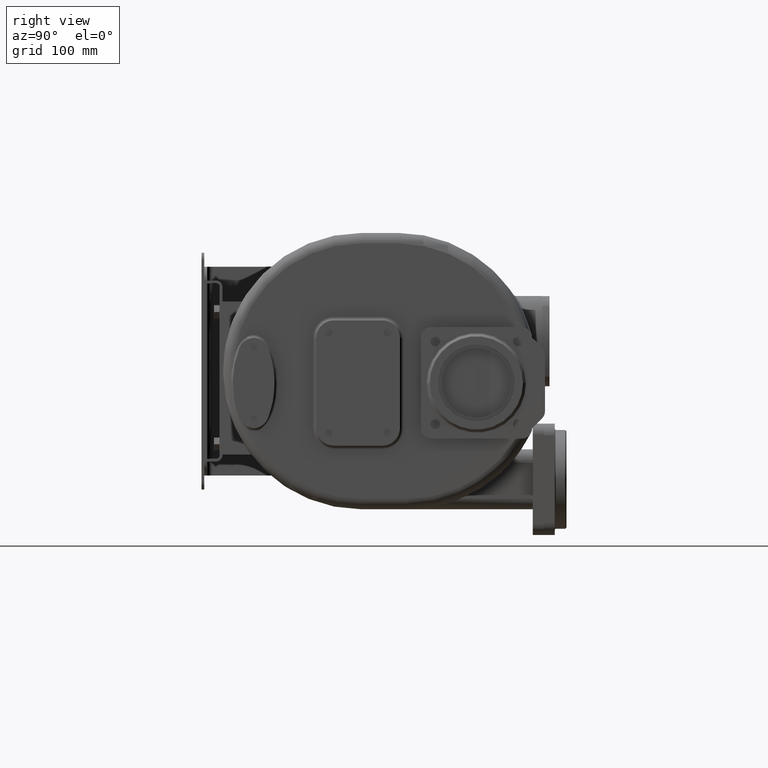
[diagram: clean part render]
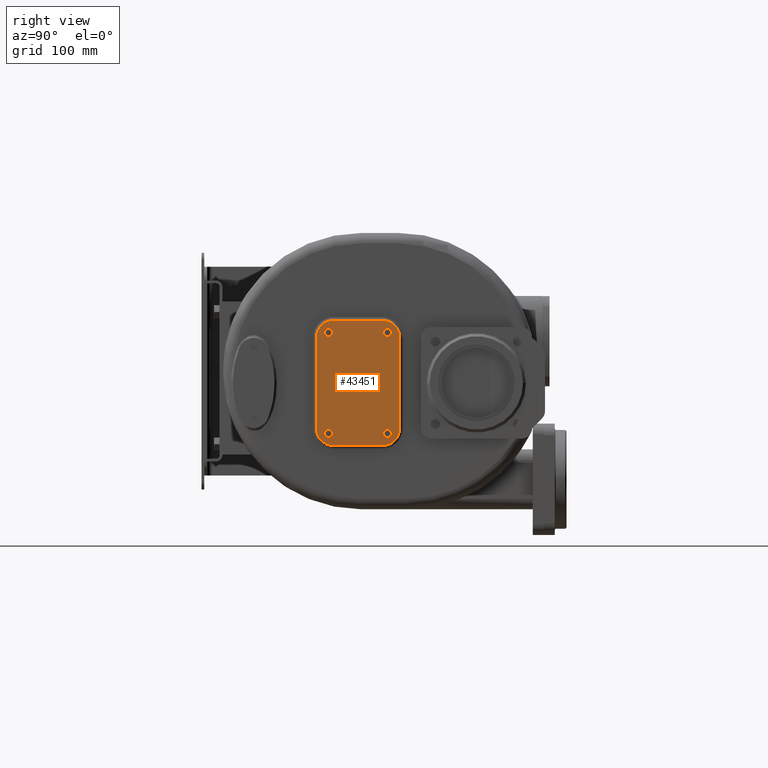
[diagram: same view with one face highlighted and labeled with its STEP entity id]
A machine part, right view. The second image highlights one B-rep face of the part: STEP entity #43451.
In plain terms, the highlighted planar face has unit normal (-1, 0, 0).
Its self-contained STEP definition (entity closure, byte-faithful):
#18193=CARTESIAN_POINT('',(2.05E2,1.6E2,4.8E1));
#18194=DIRECTION('',(-1.E0,0.E0,0.E0));
#18195=DIRECTION('',(0.E0,-1.E0,0.E0));
#18196=AXIS2_PLACEMENT_3D('',#18193,#18194,#18195);
#18198=DIRECTION('',(0.E0,1.E0,0.E0));
#18199=VECTOR('',#18198,7.E1);
#18200=CARTESIAN_POINT('',(2.05E2,1.6E2,7.3E1));
#18201=LINE('',#18200,#18199);
#18202=CARTESIAN_POINT('',(2.05E2,2.3E2,4.8E1));
#18203=DIRECTION('',(-1.E0,0.E0,0.E0));
#18204=DIRECTION('',(0.E0,0.E0,1.E0));
#18205=AXIS2_PLACEMENT_3D('',#18202,#18203,#18204);
#18207=DIRECTION('',(0.E0,0.E0,-1.E0));
#18208=VECTOR('',#18207,1.3E2);
#18209=CARTESIAN_POINT('',(2.05E2,2.55E2,4.8E1));
#18210=LINE('',#18209,#18208);
#18211=CARTESIAN_POINT('',(2.05E2,2.3E2,-8.2E1));
#18212=DIRECTION('',(-1.E0,0.E0,0.E0));
#18213=DIRECTION('',(0.E0,1.E0,0.E0));
#18214=AXIS2_PLACEMENT_3D('',#18211,#18212,#18213);
#18216=DIRECTION('',(0.E0,-1.E0,0.E0));
#18217=VECTOR('',#18216,7.E1);
#18218=CARTESIAN_POINT('',(2.05E2,2.3E2,-1.07E2));
#18219=LINE('',#18218,#18217);
#18220=CARTESIAN_POINT('',(2.05E2,1.6E2,-8.2E1));
#18221=DIRECTION('',(-1.E0,0.E0,0.E0));
#18222=DIRECTION('',(0.E0,0.E0,-1.E0));
#18223=AXIS2_PLACEMENT_3D('',#18220,#18221,#18222);
#18225=DIRECTION('',(0.E0,0.E0,1.E0));
#18226=VECTOR('',#18225,1.3E2);
#18227=CARTESIAN_POINT('',(2.05E2,1.35E2,-8.2E1));
#18228=LINE('',#18227,#18226);
#18229=CARTESIAN_POINT('',(2.05E2,1.525E2,-8.95E1));
#18230=DIRECTION('',(1.E0,0.E0,0.E0));
#18231=DIRECTION('',(0.E0,0.E0,-1.E0));
#18232=AXIS2_PLACEMENT_3D('',#18229,#18230,#18231);
#18234=CARTESIAN_POINT('',(2.05E2,1.525E2,-8.95E1));
#18235=DIRECTION('',(1.E0,0.E0,0.E0));
#18236=DIRECTION('',(0.E0,0.E0,1.E0));
#18237=AXIS2_PLACEMENT_3D('',#18234,#18235,#18236);
#18239=CARTESIAN_POINT('',(2.05E2,2.375E2,-8.95E1));
#18240=DIRECTION('',(1.E0,0.E0,0.E0));
#18241=DIRECTION('',(0.E0,0.E0,-1.E0));
#18242=AXIS2_PLACEMENT_3D('',#18239,#18240,#18241);
#18244=CARTESIAN_POINT('',(2.05E2,2.375E2,-8.95E1));
#18245=DIRECTION('',(1.E0,0.E0,0.E0));
#18246=DIRECTION('',(0.E0,0.E0,1.E0));
#18247=AXIS2_PLACEMENT_3D('',#18244,#18245,#18246);
#18249=CARTESIAN_POINT('',(2.05E2,1.525E2,5.55E1));
#18250=DIRECTION('',(1.E0,0.E0,0.E0));
#18251=DIRECTION('',(0.E0,0.E0,-1.E0));
#18252=AXIS2_PLACEMENT_3D('',#18249,#18250,#18251);
#18254=CARTESIAN_POINT('',(2.05E2,1.525E2,5.55E1));
#18255=DIRECTION('',(1.E0,0.E0,0.E0));
#18256=DIRECTION('',(0.E0,0.E0,1.E0));
#18257=AXIS2_PLACEMENT_3D('',#18254,#18255,#18256);
#18259=CARTESIAN_POINT('',(2.05E2,2.375E2,5.55E1));
#18260=DIRECTION('',(1.E0,0.E0,0.E0));
#18261=DIRECTION('',(0.E0,0.E0,-1.E0));
#18262=AXIS2_PLACEMENT_3D('',#18259,#18260,#18261);
#18264=CARTESIAN_POINT('',(2.05E2,2.375E2,5.55E1));
#18265=DIRECTION('',(1.E0,0.E0,0.E0));
#18266=DIRECTION('',(0.E0,0.E0,1.E0));
#18267=AXIS2_PLACEMENT_3D('',#18264,#18265,#18266);
#20612=CARTESIAN_POINT('',(2.05E2,1.525E2,-9.525E1));
#20613=CARTESIAN_POINT('',(2.05E2,1.525E2,-8.375E1));
#20614=VERTEX_POINT('',#20612);
#20615=VERTEX_POINT('',#20613);
#20616=CARTESIAN_POINT('',(2.05E2,2.375E2,-9.525E1));
#20617=CARTESIAN_POINT('',(2.05E2,2.375E2,-8.375E1));
#20618=VERTEX_POINT('',#20616);
#20619=VERTEX_POINT('',#20617);
#20620=CARTESIAN_POINT('',(2.05E2,1.525E2,4.975E1));
#20621=CARTESIAN_POINT('',(2.05E2,1.525E2,6.125E1));
#20622=VERTEX_POINT('',#20620);
#20623=VERTEX_POINT('',#20621);
#20624=CARTESIAN_POINT('',(2.05E2,2.375E2,4.975E1));
#20625=CARTESIAN_POINT('',(2.05E2,2.375E2,6.125E1));
#20626=VERTEX_POINT('',#20624);
#20627=VERTEX_POINT('',#20625);
#20628=CARTESIAN_POINT('',(2.05E2,1.35E2,4.8E1));
#20629=CARTESIAN_POINT('',(2.05E2,1.6E2,7.3E1));
#20630=VERTEX_POINT('',#20628);
#20631=VERTEX_POINT('',#20629);
#20632=CARTESIAN_POINT('',(2.05E2,2.3E2,7.3E1));
#20633=VERTEX_POINT('',#20632);
#20634=CARTESIAN_POINT('',(2.05E2,2.55E2,4.8E1));
#20635=VERTEX_POINT('',#20634);
#20636=CARTESIAN_POINT('',(2.05E2,2.55E2,-8.2E1));
#20637=VERTEX_POINT('',#20636);
#20638=CARTESIAN_POINT('',(2.05E2,2.3E2,-1.07E2));
#20639=VERTEX_POINT('',#20638);
#20640=CARTESIAN_POINT('',(2.05E2,1.6E2,-1.07E2));
#20641=VERTEX_POINT('',#20640);
#20642=CARTESIAN_POINT('',(2.05E2,1.35E2,-8.2E1));
#20643=VERTEX_POINT('',#20642);
#43412=CARTESIAN_POINT('',(2.05E2,1.95E2,-1.7E1));
#43413=DIRECTION('',(-1.E0,0.E0,0.E0));
#43414=DIRECTION('',(0.E0,0.E0,-1.E0));
#43415=AXIS2_PLACEMENT_3D('',#43412,#43413,#43414);
#43416=PLANE('',#43415);
#43417=ORIENTED_EDGE('',*,*,#43375,.T.);
#43418=ORIENTED_EDGE('',*,*,#43390,.T.);
#43419=ORIENTED_EDGE('',*,*,#43404,.T.);
#43420=ORIENTED_EDGE('',*,*,#43300,.T.);
#43421=ORIENTED_EDGE('',*,*,#43315,.T.);
#43422=ORIENTED_EDGE('',*,*,#43330,.T.);
#43423=ORIENTED_EDGE('',*,*,#43345,.T.);
#43424=ORIENTED_EDGE('',*,*,#43360,.T.);
#43425=EDGE_LOOP('',(#43417,#43418,#43419,#43420,#43421,#43422,#43423,#43424));
#43426=FACE_OUTER_BOUND('',#43425,.F.);
#43428=ORIENTED_EDGE('',*,*,#43427,.T.);
#43430=ORIENTED_EDGE('',*,*,#43429,.T.);
#43431=EDGE_LOOP('',(#43428,#43430));
#43432=FACE_BOUND('',#43431,.F.);
#43434=ORIENTED_EDGE('',*,*,#43433,.T.);
#43436=ORIENTED_EDGE('',*,*,#43435,.T.);
#43437=EDGE_LOOP('',(#43434,#43436));
#43438=FACE_BOUND('',#43437,.F.);
#43440=ORIENTED_EDGE('',*,*,#43439,.T.);
#43442=ORIENTED_EDGE('',*,*,#43441,.T.);
#43443=EDGE_LOOP('',(#43440,#43442));
#43444=FACE_BOUND('',#43443,.F.);
#43446=ORIENTED_EDGE('',*,*,#43445,.T.);
#43448=ORIENTED_EDGE('',*,*,#43447,.T.);
#43449=EDGE_LOOP('',(#43446,#43448));
#43450=FACE_BOUND('',#43449,.F.);
#43451=ADVANCED_FACE('',(#43426,#43432,#43438,#43444,#43450),#43416,.F.);
#18197=CIRCLE('',#18196,2.5E1);
#18206=CIRCLE('',#18205,2.5E1);
#18215=CIRCLE('',#18214,2.5E1);
#18224=CIRCLE('',#18223,2.5E1);
#18233=CIRCLE('',#18232,5.75E0);
#18238=CIRCLE('',#18237,5.75E0);
#18243=CIRCLE('',#18242,5.75E0);
#18248=CIRCLE('',#18247,5.75E0);
#18253=CIRCLE('',#18252,5.75E0);
#18258=CIRCLE('',#18257,5.75E0);
#18263=CIRCLE('',#18262,5.75E0);
#18268=CIRCLE('',#18267,5.75E0);
#43300=EDGE_CURVE('',#20635,#20637,#18210,.T.);
#43315=EDGE_CURVE('',#20637,#20639,#18215,.T.);
#43330=EDGE_CURVE('',#20639,#20641,#18219,.T.);
#43345=EDGE_CURVE('',#20641,#20643,#18224,.T.);
#43360=EDGE_CURVE('',#20643,#20630,#18228,.T.);
#43375=EDGE_CURVE('',#20630,#20631,#18197,.T.);
#43390=EDGE_CURVE('',#20631,#20633,#18201,.T.);
#43404=EDGE_CURVE('',#20633,#20635,#18206,.T.);
#43427=EDGE_CURVE('',#20614,#20615,#18233,.T.);
#43429=EDGE_CURVE('',#20615,#20614,#18238,.T.);
#43433=EDGE_CURVE('',#20618,#20619,#18243,.T.);
#43435=EDGE_CURVE('',#20619,#20618,#18248,.T.);
#43439=EDGE_CURVE('',#20622,#20623,#18253,.T.);
#43441=EDGE_CURVE('',#20623,#20622,#18258,.T.);
#43445=EDGE_CURVE('',#20626,#20627,#18263,.T.);
#43447=EDGE_CURVE('',#20627,#20626,#18268,.T.);